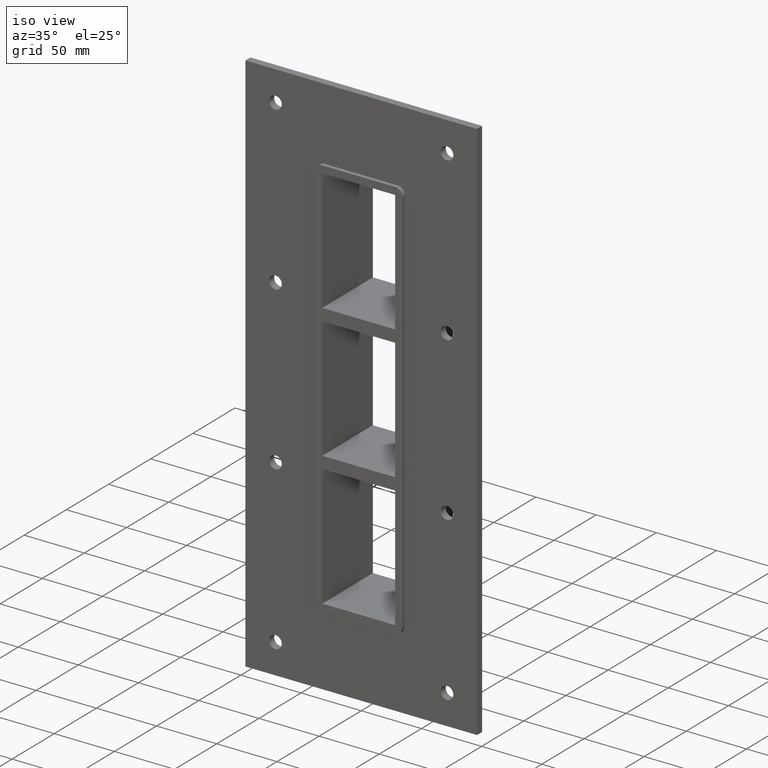
[diagram: clean part render]
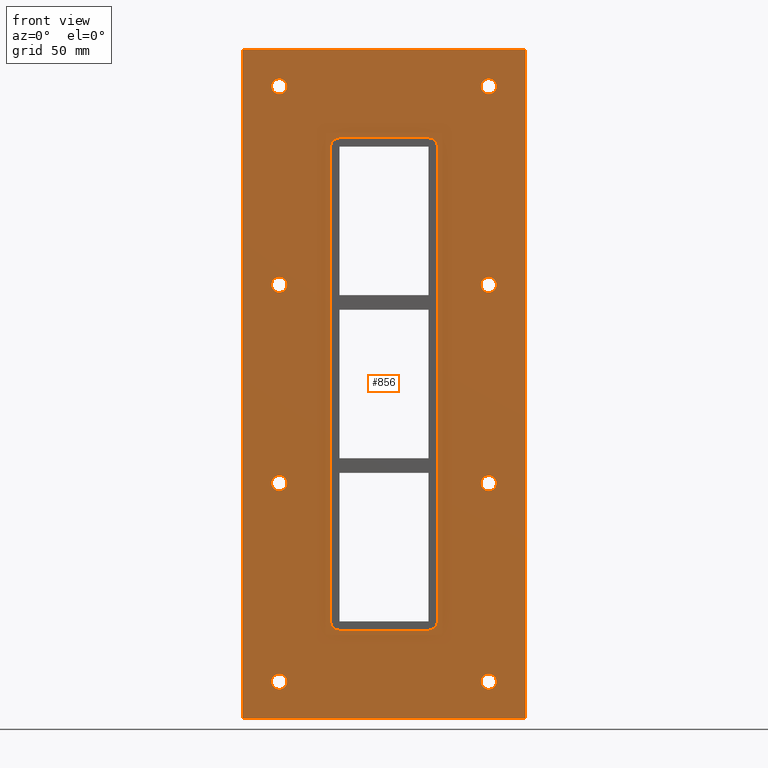
[diagram: tour spotlight — one face highlighted and labeled with its STEP entity id]
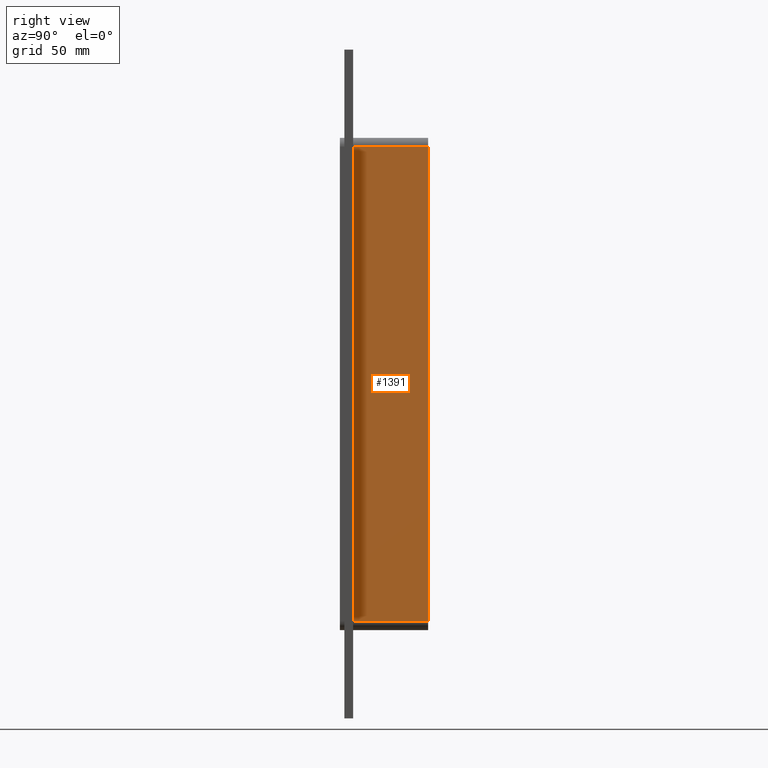
[diagram: tour spotlight — one face highlighted and labeled with its STEP entity id]
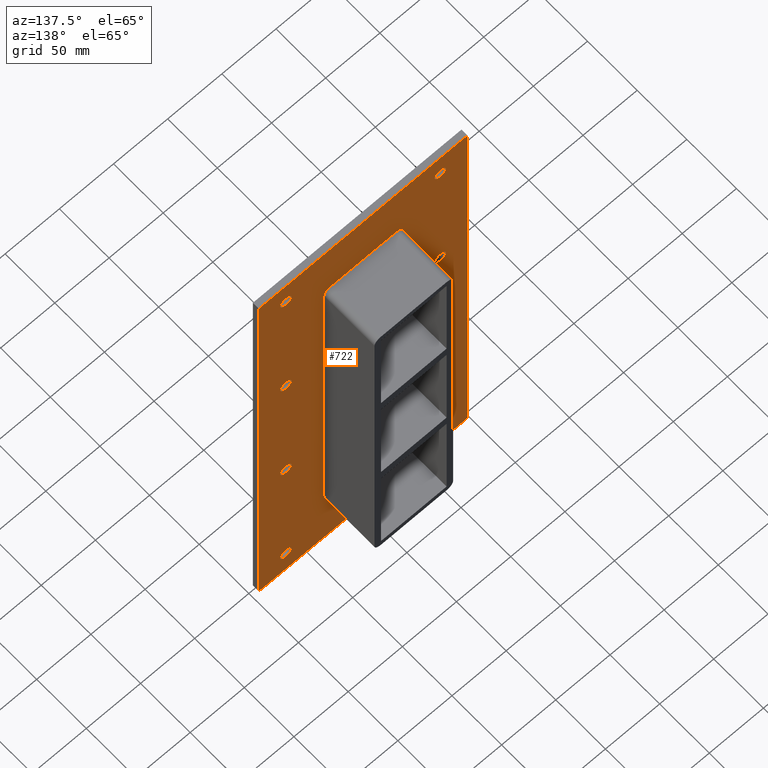
[diagram: tour spotlight — one face highlighted and labeled with its STEP entity id]
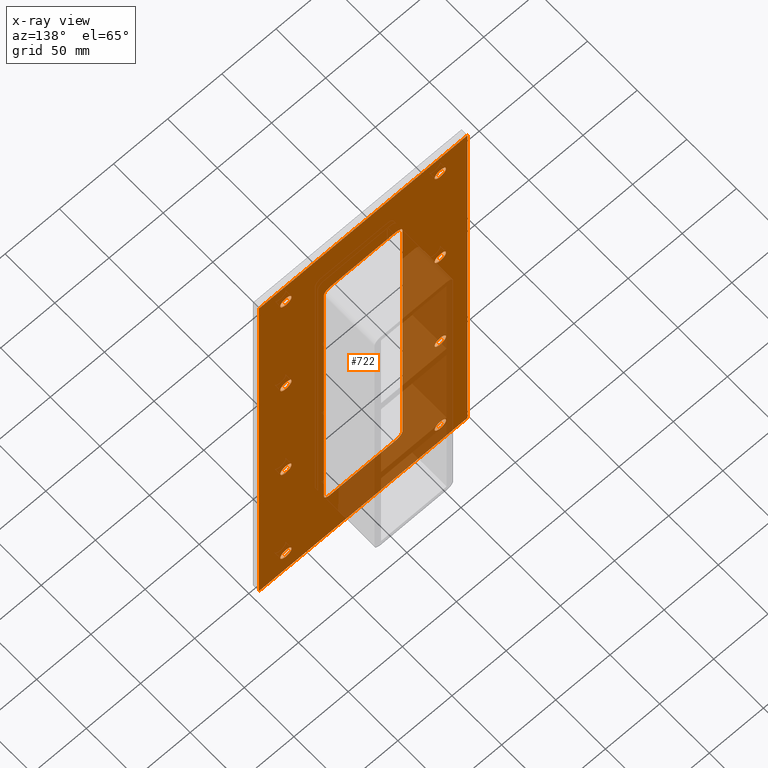
[diagram: x-ray of the same camera — body ghosted, this tour face saturated]
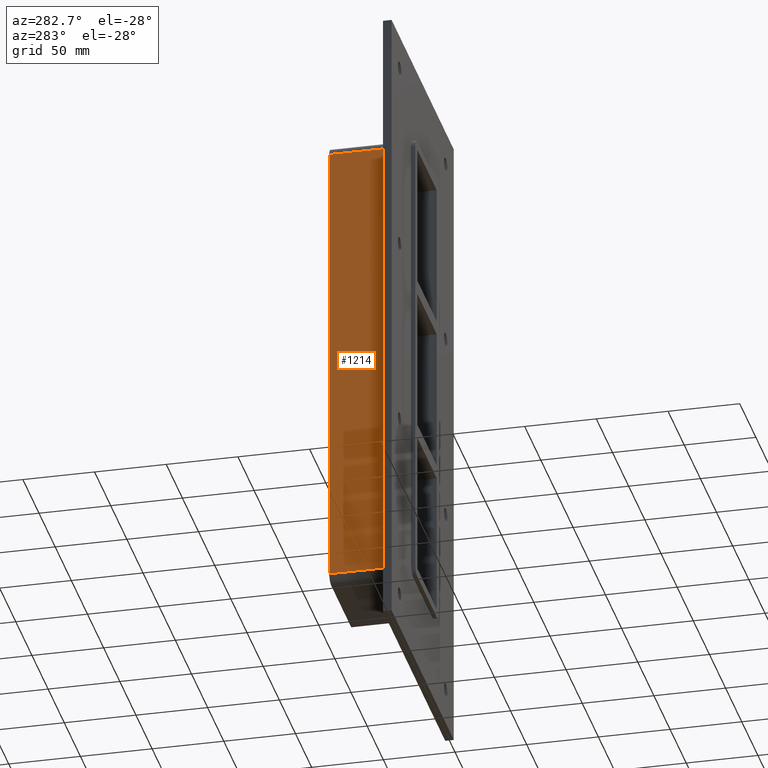
[diagram: tour spotlight — one face highlighted and labeled with its STEP entity id]
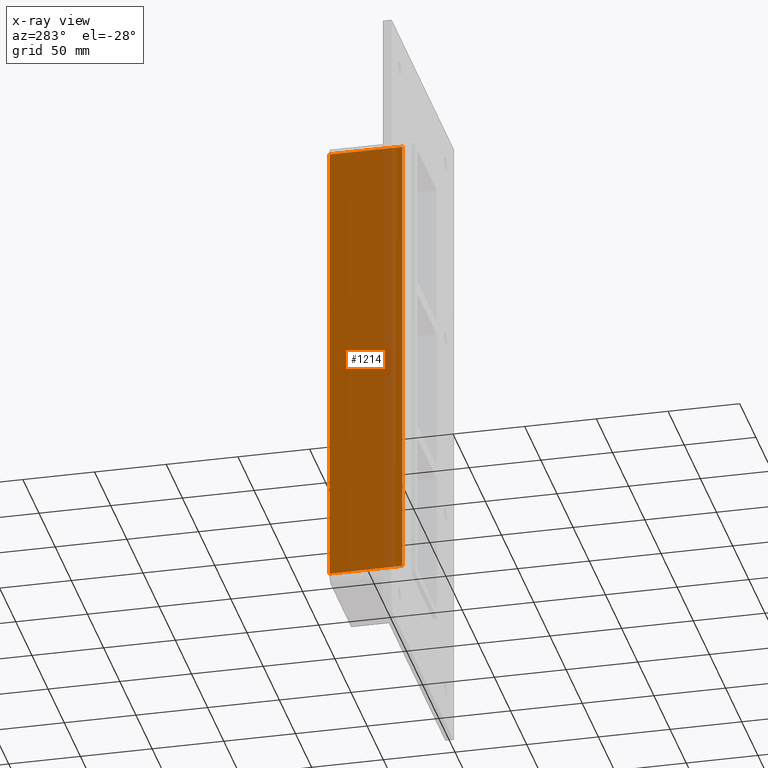
[diagram: x-ray of the same camera — body ghosted, this tour face saturated]
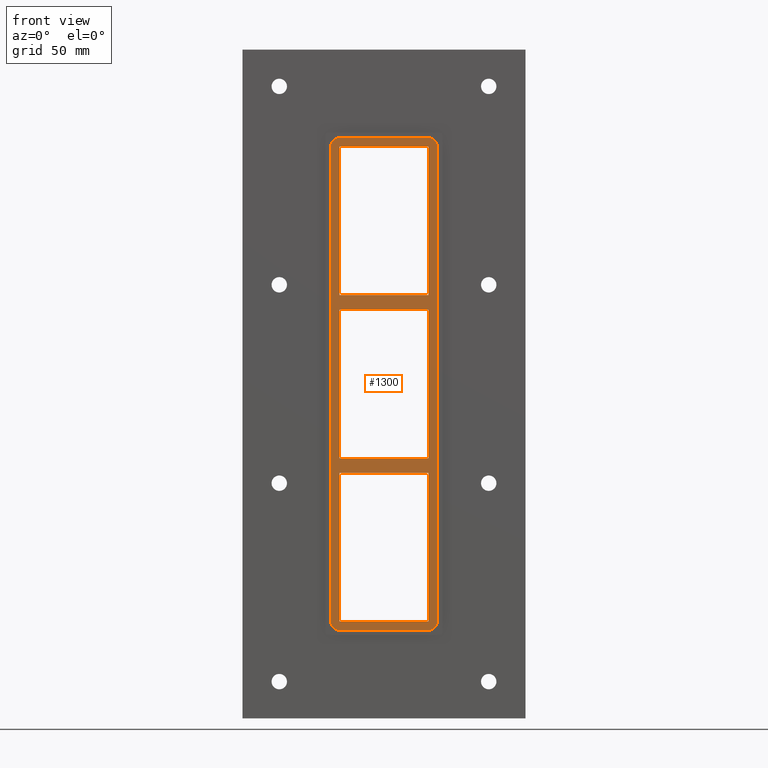
[diagram: tour spotlight — one face highlighted and labeled with its STEP entity id]
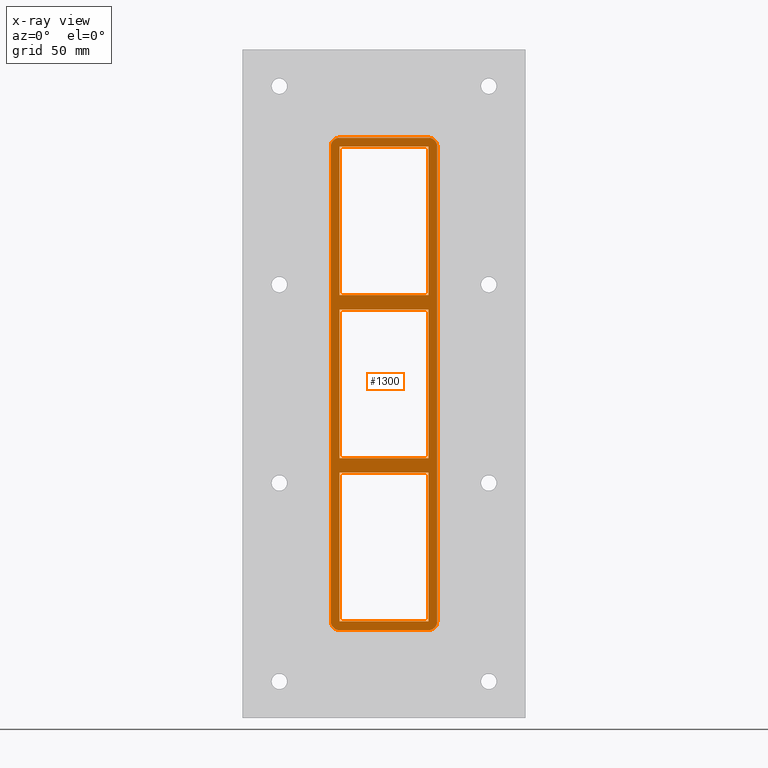
[diagram: x-ray of the same camera — body ghosted, this tour face saturated]
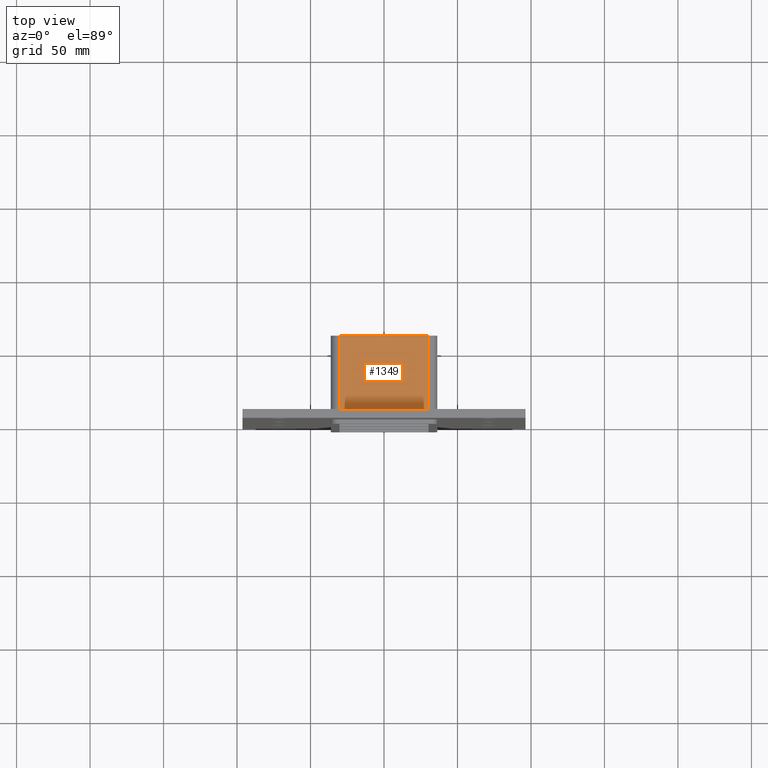
[diagram: tour spotlight — one face highlighted and labeled with its STEP entity id]
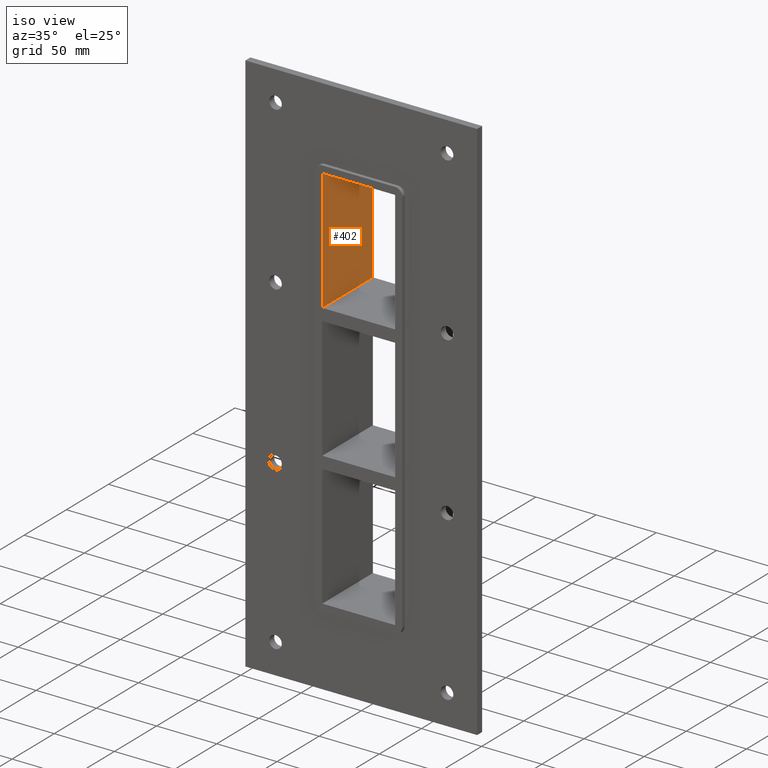
[diagram: tour spotlight — one face highlighted and labeled with its STEP entity id]
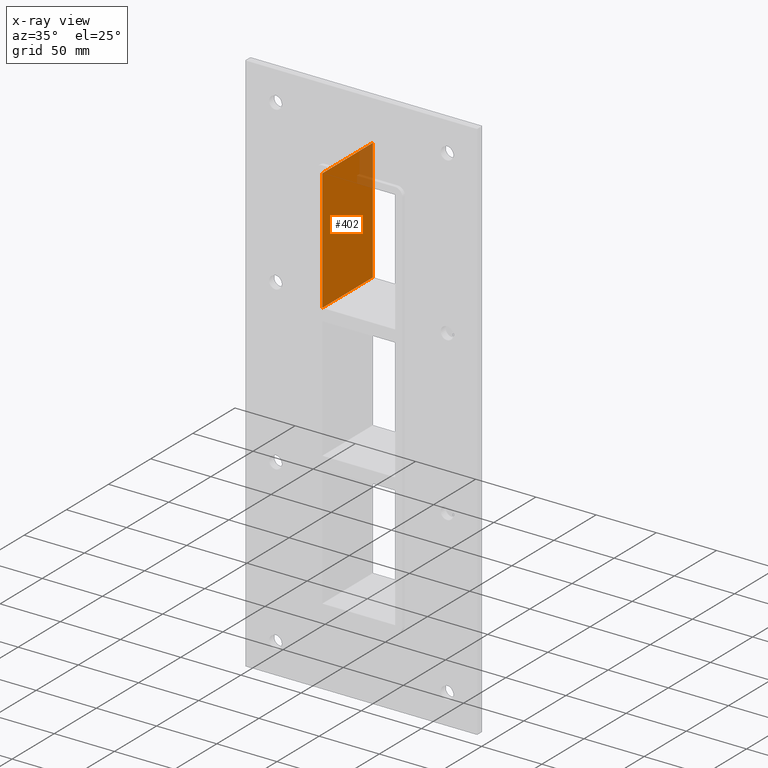
[diagram: x-ray of the same camera — body ghosted, this tour face saturated]
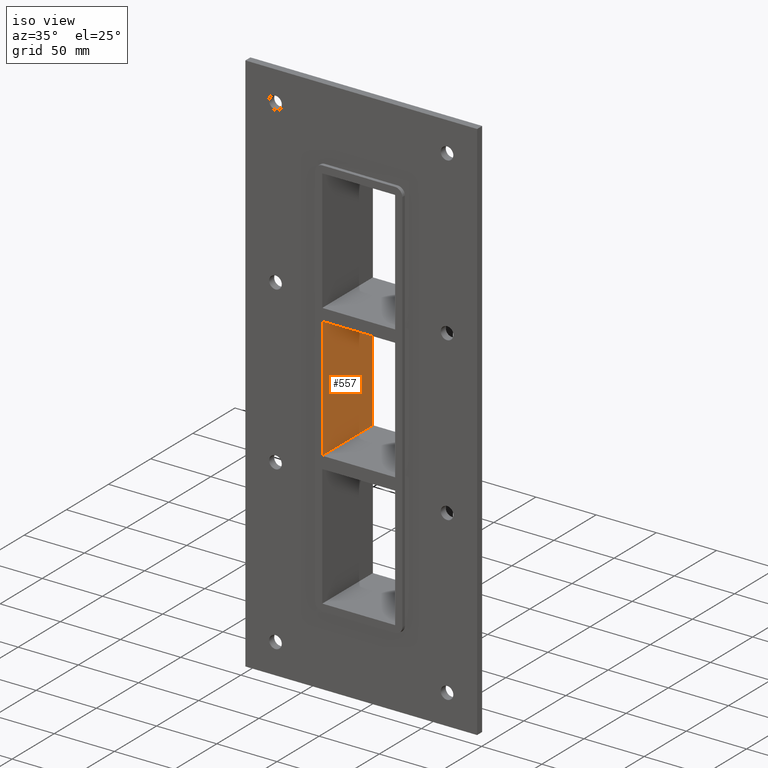
[diagram: tour spotlight — one face highlighted and labeled with its STEP entity id]
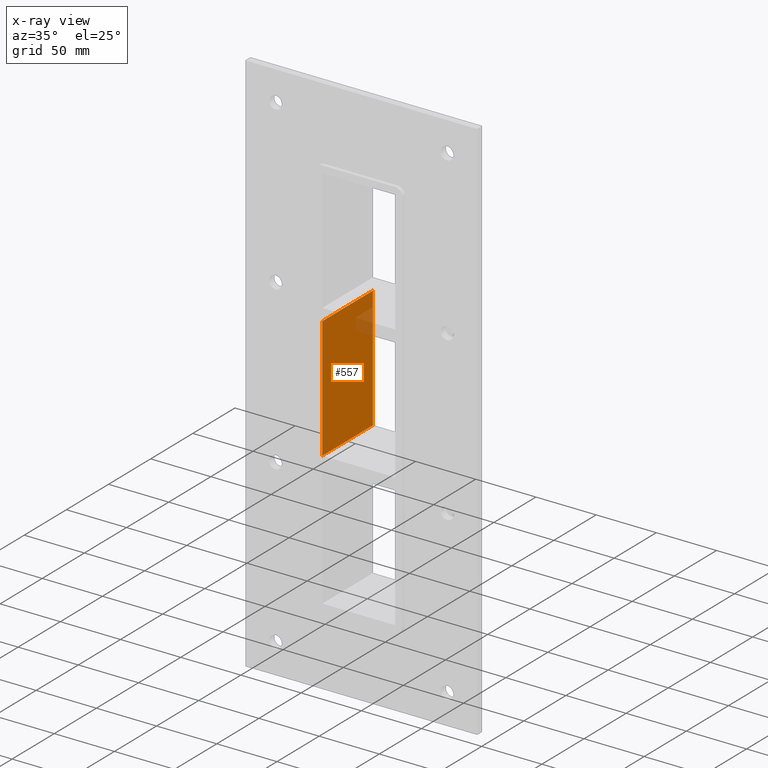
[diagram: x-ray of the same camera — body ghosted, this tour face saturated]
A machine part: a face-by-face anatomy tour. The part has 44 B-rep faces; the first image is the clean iso view, then the 8 largest visible faces are spotlighted one at a time (largest first), each with its STEP entity span.

Face 1 — front view, entity #856. In plain terms, the highlighted planar face has unit normal (0, 1, 0).
Definition (entity closure, byte-faithful):
#84=CARTESIAN_POINT('',(-66.000000000000085,0.0,-202.49999999999986));
#85=VERTEX_POINT('',#84);
#86=CARTESIAN_POINT('',(-71.250000000000085,0.0,-202.49999999999986));
#87=DIRECTION('',(0.0,1.0,0.0));
#88=DIRECTION('',(1.0,0.0,0.0));
#89=AXIS2_PLACEMENT_3D('',#86,#87,#88);
#90=CIRCLE('',#89,5.25);
#91=EDGE_CURVE('',#85,#85,#90,.T.);
#112=CARTESIAN_POINT('',(76.499999999999915,0.0,-67.499999999999886));
#113=VERTEX_POINT('',#112);
#114=CARTESIAN_POINT('',(71.249999999999915,0.0,-67.499999999999886));
#115=DIRECTION('',(0.0,1.0,0.0));
#116=DIRECTION('',(1.0,0.0,0.0));
#117=AXIS2_PLACEMENT_3D('',#114,#115,#116);
#118=CIRCLE('',#117,5.25);
#119=EDGE_CURVE('',#113,#113,#118,.T.);
#140=CARTESIAN_POINT('',(-66.000000000000085,0.0,-67.499999999999886));
#141=VERTEX_POINT('',#140);
#142=CARTESIAN_POINT('',(-71.250000000000085,0.0,-67.499999999999886));
#143=DIRECTION('',(0.0,1.0,0.0));
#144=DIRECTION('',(1.0,0.0,0.0));
#145=AXIS2_PLACEMENT_3D('',#142,#143,#144);
#146=CIRCLE('',#145,5.25);
#147=EDGE_CURVE('',#141,#141,#146,.T.);
#168=CARTESIAN_POINT('',(76.499999999999915,0.0,67.500000000000085));
#169=VERTEX_POINT('',#168);
#170=CARTESIAN_POINT('',(71.249999999999915,0.0,67.500000000000085));
#171=DIRECTION('',(0.0,1.0,0.0));
#172=DIRECTION('',(1.0,0.0,0.0));
#173=AXIS2_PLACEMENT_3D('',#170,#171,#172);
#174=CIRCLE('',#173,5.25);
#175=EDGE_CURVE('',#169,#169,#174,.T.);
#196=CARTESIAN_POINT('',(-66.000000000000085,0.0,67.500000000000085));
#197=VERTEX_POINT('',#196);
#198=CARTESIAN_POINT('',(-71.250000000000085,0.0,67.500000000000085));
#199=DIRECTION('',(0.0,1.0,0.0));
#200=DIRECTION('',(1.0,0.0,0.0));
#201=AXIS2_PLACEMENT_3D('',#198,#199,#200);
#202=CIRCLE('',#201,5.25);
#203=EDGE_CURVE('',#197,#197,#202,.T.);
#224=CARTESIAN_POINT('',(76.499999999999901,0.0,-202.49999999999994));
#225=VERTEX_POINT('',#224);
#226=CARTESIAN_POINT('',(71.249999999999886,0.0,-202.49999999999994));
#227=DIRECTION('',(0.0,1.0,0.0));
#228=DIRECTION('',(1.0,0.0,0.0));
#229=AXIS2_PLACEMENT_3D('',#226,#227,#228);
#230=CIRCLE('',#229,5.25);
#231=EDGE_CURVE('',#225,#225,#230,.T.);
#252=CARTESIAN_POINT('',(-66.000000000000085,0.0,202.50000000000006));
#253=VERTEX_POINT('',#252);
#254=CARTESIAN_POINT('',(-71.250000000000085,0.0,202.50000000000006));
#255=DIRECTION('',(0.0,1.0,0.0));
#256=DIRECTION('',(1.0,0.0,0.0));
#257=AXIS2_PLACEMENT_3D('',#254,#255,#256);
#258=CIRCLE('',#257,5.25);
#259=EDGE_CURVE('',#253,#253,#258,.T.);
#280=CARTESIAN_POINT('',(76.499999999999915,0.0,202.50000000000006));
#281=VERTEX_POINT('',#280);
#282=CARTESIAN_POINT('',(71.249999999999915,0.0,202.50000000000006));
#283=DIRECTION('',(0.0,1.0,0.0));
#284=DIRECTION('',(1.0,0.0,0.0));
#285=AXIS2_PLACEMENT_3D('',#282,#283,#284);
#286=CIRCLE('',#285,5.25);
#287=EDGE_CURVE('',#281,#281,#286,.T.);
#723=CARTESIAN_POINT('',(0.0,0.0,3.881923E-014));
#724=DIRECTION('',(0.0,1.0,0.0));
#725=DIRECTION('',(0.0,0.0,1.0));
#726=AXIS2_PLACEMENT_3D('',#723,#724,#725);
#727=PLANE('',#726);
#728=CARTESIAN_POINT('',(-96.249999999999986,0.0,227.5));
#729=VERTEX_POINT('',#728);
#730=CARTESIAN_POINT('',(96.249999999999986,0.0,227.5));
#731=VERTEX_POINT('',#730);
#732=CARTESIAN_POINT('',(-96.249999999999986,0.0,227.5));
#733=DIRECTION('',(1.0,0.0,0.0));
#734=VECTOR('',#733,192.49999999999997);
#735=LINE('',#732,#734);
#736=EDGE_CURVE('',#729,#731,#735,.T.);
#737=ORIENTED_EDGE('',*,*,#736,.F.);
#738=CARTESIAN_POINT('',(-96.249999999999986,0.0,-227.49999999999994));
#739=VERTEX_POINT('',#738);
#740=CARTESIAN_POINT('',(-96.249999999999986,0.0,-227.49999999999994));
#741=DIRECTION('',(0.0,0.0,1.0));
#742=VECTOR('',#741,454.99999999999994);
#743=LINE('',#740,#742);
#744=EDGE_CURVE('',#739,#729,#743,.T.);
#745=ORIENTED_EDGE('',*,*,#744,.F.);
#746=CARTESIAN_POINT('',(96.249999999999986,0.0,-227.49999999999994));
#747=VERTEX_POINT('',#746);
#748=CARTESIAN_POINT('',(96.249999999999986,0.0,-227.49999999999994));
#749=DIRECTION('',(-1.0,0.0,0.0));
#750=VECTOR('',#749,192.49999999999997);
#751=LINE('',#748,#750);
#752=EDGE_CURVE('',#747,#739,#751,.T.);
#753=ORIENTED_EDGE('',*,*,#752,.F.);
#754=CARTESIAN_POINT('',(96.249999999999986,0.0,227.5));
#755=DIRECTION('',(0.0,0.0,-1.0));
#756=VECTOR('',#755,454.99999999999994);
#757=LINE('',#754,#756);
#758=EDGE_CURVE('',#731,#747,#757,.T.);
#759=ORIENTED_EDGE('',*,*,#758,.F.);
#760=EDGE_LOOP('',(#737,#745,#753,#759));
#761=FACE_OUTER_BOUND('',#760,.T.);
#762=ORIENTED_EDGE('',*,*,#91,.T.);
#763=EDGE_LOOP('',(#762));
#764=FACE_BOUND('',#763,.T.);
#765=ORIENTED_EDGE('',*,*,#119,.T.);
#766=EDGE_LOOP('',(#765));
#767=FACE_BOUND('',#766,.T.);
#768=ORIENTED_EDGE('',*,*,#147,.T.);
#769=EDGE_LOOP('',(#768));
#770=FACE_BOUND('',#769,.T.);
#771=ORIENTED_EDGE('',*,*,#175,.T.);
#772=EDGE_LOOP('',(#771));
#773=FACE_BOUND('',#772,.T.);
#774=ORIENTED_EDGE('',*,*,#203,.T.);
#775=EDGE_LOOP('',(#774));
#776=FACE_BOUND('',#775,.T.);
#777=ORIENTED_EDGE('',*,*,#231,.T.);
#778=EDGE_LOOP('',(#777));
#779=FACE_BOUND('',#778,.T.);
#780=ORIENTED_EDGE('',*,*,#259,.T.);
#781=EDGE_LOOP('',(#780));
#782=FACE_BOUND('',#781,.T.);
#783=ORIENTED_EDGE('',*,*,#287,.T.);
#784=EDGE_LOOP('',(#783));
#785=FACE_BOUND('',#784,.T.);
#786=CARTESIAN_POINT('',(-30.250000000000004,0.0,167.5));
#787=VERTEX_POINT('',#786);
#788=CARTESIAN_POINT('',(-36.25,0.0,161.5));
#789=VERTEX_POINT('',#788);
#790=CARTESIAN_POINT('',(-30.250000000000004,0.0,161.5));
#791=DIRECTION('',(0.0,-1.0,0.0));
#792=DIRECTION('',(-0.707106781186546,0.0,0.707106781186549));
#793=AXIS2_PLACEMENT_3D('',#790,#791,#792);
#794=CIRCLE('',#793,6.000000000000001);
#795=EDGE_CURVE('',#787,#789,#794,.T.);
#796=ORIENTED_EDGE('',*,*,#795,.F.);
#797=CARTESIAN_POINT('',(30.250000000000004,0.0,167.5));
#798=VERTEX_POINT('',#797);
#799=CARTESIAN_POINT('',(30.25,0.0,167.5));
#800=DIRECTION('',(-1.0,0.0,0.0));
#801=VECTOR('',#800,60.5);
#802=LINE('',#799,#801);
#803=EDGE_CURVE('',#798,#787,#802,.T.);
#804=ORIENTED_EDGE('',*,*,#803,.F.);
#805=CARTESIAN_POINT('',(36.25,0.0,161.5));
#806=VERTEX_POINT('',#805);
#807=CARTESIAN_POINT('',(30.250000000000004,0.0,161.5));
#808=DIRECTION('',(0.0,-1.0,0.0));
#809=DIRECTION('',(0.707106781186546,0.0,0.707106781186549));
#810=AXIS2_PLACEMENT_3D('',#807,#808,#809);
#811=CIRCLE('',#810,6.000000000000001);
#812=EDGE_CURVE('',#806,#798,#811,.T.);
#813=ORIENTED_EDGE('',*,*,#812,.F.);
#814=CARTESIAN_POINT('',(36.25,0.0,-161.5));
#815=VERTEX_POINT('',#814);
#816=CARTESIAN_POINT('',(36.25,0.0,-161.5));
#817=DIRECTION('',(0.0,0.0,1.0));
#818=VECTOR('',#817,323.0);
#819=LINE('',#816,#818);
#820=EDGE_CURVE('',#815,#806,#819,.T.);
#821=ORIENTED_EDGE('',*,*,#820,.F.);
#822=CARTESIAN_POINT('',(30.250000000000004,0.0,-167.5));
#823=VERTEX_POINT('',#822);
#824=CARTESIAN_POINT('',(30.250000000000004,0.0,-161.5));
#825=DIRECTION('',(0.0,-1.0,0.0));
#826=DIRECTION('',(0.707106781186546,0.0,-0.707106781186549));
#827=AXIS2_PLACEMENT_3D('',#824,#825,#826);
#828=CIRCLE('',#827,6.000000000000001);
#829=EDGE_CURVE('',#823,#815,#828,.T.);
#830=ORIENTED_EDGE('',*,*,#829,.F.);
#831=CARTESIAN_POINT('',(-30.250000000000004,0.0,-167.5));
#832=VERTEX_POINT('',#831);
#833=CARTESIAN_POINT('',(-30.25,0.0,-167.5));
#834=DIRECTION('',(1.0,0.0,0.0));
#835=VECTOR('',#834,60.5);
#836=LINE('',#833,#835);
#837=EDGE_CURVE('',#832,#823,#836,.T.);
#838=ORIENTED_EDGE('',*,*,#837,.F.);
#839=CARTESIAN_POINT('',(-36.25,0.0,-161.5));
#840=VERTEX_POINT('',#839);
#841=CARTESIAN_POINT('',(-30.250000000000004,0.0,-161.5));
#842=DIRECTION('',(0.0,-1.0,0.0));
#843=DIRECTION('',(-0.707106781186546,0.0,-0.707106781186549));
#844=AXIS2_PLACEMENT_3D('',#841,#842,#843);
#845=CIRCLE('',#844,6.000000000000001);
#846=EDGE_CURVE('',#840,#832,#845,.T.);
#847=ORIENTED_EDGE('',*,*,#846,.F.);
#848=CARTESIAN_POINT('',(-36.25,0.0,161.5));
#849=DIRECTION('',(0.0,0.0,-1.0));
#850=VECTOR('',#849,323.0);
#851=LINE('',#848,#850);
#852=EDGE_CURVE('',#789,#840,#851,.T.);
#853=ORIENTED_EDGE('',*,*,#852,.F.);
#854=EDGE_LOOP('',(#796,#804,#813,#821,#830,#838,#847,#853));
#855=FACE_BOUND('',#854,.T.);
#856=ADVANCED_FACE('',(#761,#764,#767,#770,#773,#776,#779,#782,#785,#855),#727,.F.);

Face 2 — right view, entity #1391. In plain terms, the highlighted planar face has unit normal (1, 0, 0).
Definition (entity closure, byte-faithful):
#688=CARTESIAN_POINT('',(36.25,6.000000000000001,-161.5));
#689=VERTEX_POINT('',#688);
#697=CARTESIAN_POINT('',(36.25,6.000000000000001,161.5));
#698=VERTEX_POINT('',#697);
#699=CARTESIAN_POINT('',(36.25,6.000000000000001,161.5));
#700=DIRECTION('',(0.0,0.0,-1.0));
#701=VECTOR('',#700,323.0);
#702=LINE('',#699,#701);
#703=EDGE_CURVE('',#698,#689,#702,.T.);
#1002=CARTESIAN_POINT('',(36.25,57.0,-161.5));
#1003=VERTEX_POINT('',#1002);
#1011=CARTESIAN_POINT('',(36.25,57.0,-161.5));
#1012=DIRECTION('',(0.0,-1.0,0.0));
#1013=VECTOR('',#1012,51.0);
#1014=LINE('',#1011,#1013);
#1015=EDGE_CURVE('',#1003,#689,#1014,.T.);
#1356=CARTESIAN_POINT('',(36.25,57.0,161.5));
#1357=VERTEX_POINT('',#1356);
#1358=CARTESIAN_POINT('',(36.25,6.000000000000001,161.5));
#1359=DIRECTION('',(0.0,1.0,0.0));
#1360=VECTOR('',#1359,51.0);
#1361=LINE('',#1358,#1360);
#1362=EDGE_CURVE('',#698,#1357,#1361,.T.);
#1375=CARTESIAN_POINT('',(36.25,0.0,167.5));
#1376=DIRECTION('',(1.0,0.0,0.0));
#1377=DIRECTION('',(0.0,0.0,-1.0));
#1378=AXIS2_PLACEMENT_3D('',#1375,#1376,#1377);
#1379=PLANE('',#1378);
#1380=ORIENTED_EDGE('',*,*,#703,.T.);
#1381=ORIENTED_EDGE('',*,*,#1015,.F.);
#1382=CARTESIAN_POINT('',(36.25,57.0,161.5));
#1383=DIRECTION('',(0.0,0.0,-1.0));
#1384=VECTOR('',#1383,323.0);
#1385=LINE('',#1382,#1384);
#1386=EDGE_CURVE('',#1357,#1003,#1385,.T.);
#1387=ORIENTED_EDGE('',*,*,#1386,.F.);
#1388=ORIENTED_EDGE('',*,*,#1362,.F.);
#1389=EDGE_LOOP('',(#1380,#1381,#1387,#1388));
#1390=FACE_OUTER_BOUND('',#1389,.T.);
#1391=ADVANCED_FACE('',(#1390),#1379,.T.);

Face 3 — auxiliary view, entity #722. An x-ray twin of the same camera follows (body ghosted, this face saturated) — the face is partly hidden behind the body. In plain terms, the highlighted planar face has unit normal (0, 1, 0).
Definition (entity closure, byte-faithful):
#73=CARTESIAN_POINT('',(-76.500000000000085,6.000000000000014,-202.49999999999986));
#74=VERTEX_POINT('',#73);
#75=CARTESIAN_POINT('',(-71.250000000000085,6.000000000000014,-202.49999999999986));
#76=DIRECTION('',(0.0,-1.0,0.0));
#77=DIRECTION('',(1.0,0.0,0.0));
#78=AXIS2_PLACEMENT_3D('',#75,#76,#77);
#79=CIRCLE('',#78,5.25);
#80=EDGE_CURVE('',#74,#74,#79,.T.);
#101=CARTESIAN_POINT('',(65.999999999999915,6.000000000000014,-67.499999999999886));
#102=VERTEX_POINT('',#101);
#103=CARTESIAN_POINT('',(71.249999999999915,6.000000000000014,-67.499999999999886));
#104=DIRECTION('',(0.0,-1.0,0.0));
#105=DIRECTION('',(1.0,0.0,0.0));
#106=AXIS2_PLACEMENT_3D('',#103,#104,#105);
#107=CIRCLE('',#106,5.25);
#108=EDGE_CURVE('',#102,#102,#107,.T.);
#129=CARTESIAN_POINT('',(-76.500000000000085,6.000000000000014,-67.499999999999886));
#130=VERTEX_POINT('',#129);
#131=CARTESIAN_POINT('',(-71.250000000000085,6.000000000000014,-67.499999999999886));
#132=DIRECTION('',(0.0,-1.0,0.0));
#133=DIRECTION('',(1.0,0.0,0.0));
#134=AXIS2_PLACEMENT_3D('',#131,#132,#133);
#135=CIRCLE('',#134,5.25);
#136=EDGE_CURVE('',#130,#130,#135,.T.);
#157=CARTESIAN_POINT('',(65.999999999999915,6.000000000000014,67.500000000000085));
#158=VERTEX_POINT('',#157);
#159=CARTESIAN_POINT('',(71.249999999999915,6.000000000000014,67.500000000000085));
#160=DIRECTION('',(0.0,-1.0,0.0));
#161=DIRECTION('',(1.0,0.0,0.0));
#162=AXIS2_PLACEMENT_3D('',#159,#160,#161);
#163=CIRCLE('',#162,5.25);
#164=EDGE_CURVE('',#158,#158,#163,.T.);
#185=CARTESIAN_POINT('',(-76.500000000000085,6.000000000000014,67.500000000000085));
#186=VERTEX_POINT('',#185);
#187=CARTESIAN_POINT('',(-71.250000000000085,6.000000000000014,67.500000000000085));
#188=DIRECTION('',(0.0,-1.0,0.0));
#189=DIRECTION('',(1.0,0.0,0.0));
#190=AXIS2_PLACEMENT_3D('',#187,#188,#189);
#191=CIRCLE('',#190,5.25);
#192=EDGE_CURVE('',#186,#186,#191,.T.);
#213=CARTESIAN_POINT('',(65.999999999999886,6.000000000000014,-202.49999999999994));
#214=VERTEX_POINT('',#213);
#215=CARTESIAN_POINT('',(71.249999999999886,6.000000000000014,-202.49999999999994));
#216=DIRECTION('',(0.0,-1.0,0.0));
#217=DIRECTION('',(1.0,0.0,0.0));
#218=AXIS2_PLACEMENT_3D('',#215,#216,#217);
#219=CIRCLE('',#218,5.25);
#220=EDGE_CURVE('',#214,#214,#219,.T.);
#241=CARTESIAN_POINT('',(-76.500000000000085,6.000000000000014,202.50000000000006));
#242=VERTEX_POINT('',#241);
#243=CARTESIAN_POINT('',(-71.250000000000085,6.000000000000014,202.50000000000006));
#244=DIRECTION('',(0.0,-1.0,0.0));
#245=DIRECTION('',(1.0,0.0,0.0));
#246=AXIS2_PLACEMENT_3D('',#243,#244,#245);
#247=CIRCLE('',#246,5.25);
#248=EDGE_CURVE('',#242,#242,#247,.T.);
#269=CARTESIAN_POINT('',(65.999999999999915,6.000000000000014,202.50000000000006));
#270=VERTEX_POINT('',#269);
#271=CARTESIAN_POINT('',(71.249999999999915,6.000000000000014,202.50000000000006));
#272=DIRECTION('',(0.0,-1.0,0.0));
#273=DIRECTION('',(1.0,0.0,0.0));
#274=AXIS2_PLACEMENT_3D('',#271,#272,#273);
#275=CIRCLE('',#274,5.25);
#276=EDGE_CURVE('',#270,#270,#275,.T.);
#589=CARTESIAN_POINT('',(0.0,6.000000000000001,3.881923E-014));
#590=DIRECTION('',(0.0,1.0,0.0));
#591=DIRECTION('',(0.0,0.0,1.0));
#592=AXIS2_PLACEMENT_3D('',#589,#590,#591);
#593=PLANE('',#592);
#594=CARTESIAN_POINT('',(-96.249999999999986,6.000000000000001,227.5));
#595=VERTEX_POINT('',#594);
#596=CARTESIAN_POINT('',(96.249999999999986,6.000000000000001,227.5));
#597=VERTEX_POINT('',#596);
#598=CARTESIAN_POINT('',(-96.249999999999986,6.000000000000001,227.5));
#599=DIRECTION('',(1.0,0.0,0.0));
#600=VECTOR('',#599,192.49999999999997);
#601=LINE('',#598,#600);
#602=EDGE_CURVE('',#595,#597,#601,.T.);
#603=ORIENTED_EDGE('',*,*,#602,.T.);
#604=CARTESIAN_POINT('',(96.249999999999986,6.000000000000001,-227.49999999999994));
#605=VERTEX_POINT('',#604);
#606=CARTESIAN_POINT('',(96.249999999999986,6.000000000000001,227.5));
#607=DIRECTION('',(0.0,0.0,-1.0));
#608=VECTOR('',#607,454.99999999999994);
#609=LINE('',#606,#608);
#610=EDGE_CURVE('',#597,#605,#609,.T.);
#611=ORIENTED_EDGE('',*,*,#610,.T.);
#612=CARTESIAN_POINT('',(-96.249999999999986,6.000000000000001,-227.49999999999994));
#613=VERTEX_POINT('',#612);
#614=CARTESIAN_POINT('',(96.249999999999986,6.000000000000001,-227.49999999999994));
#615=DIRECTION('',(-1.0,0.0,0.0));
#616=VECTOR('',#615,192.49999999999997);
#617=LINE('',#614,#616);
#618=EDGE_CURVE('',#605,#613,#617,.T.);
#619=ORIENTED_EDGE('',*,*,#618,.T.);
#620=CARTESIAN_POINT('',(-96.249999999999986,6.000000000000001,-227.49999999999994));
#621=DIRECTION('',(0.0,0.0,1.0));
#622=VECTOR('',#621,454.99999999999994);
#623=LINE('',#620,#622);
#624=EDGE_CURVE('',#613,#595,#623,.T.);
#625=ORIENTED_EDGE('',*,*,#624,.T.);
#626=EDGE_LOOP('',(#603,#611,#619,#625));
#627=FACE_OUTER_BOUND('',#626,.T.);
#628=ORIENTED_EDGE('',*,*,#80,.T.);
#629=EDGE_LOOP('',(#628));
#630=FACE_BOUND('',#629,.T.);
#631=ORIENTED_EDGE('',*,*,#108,.T.);
#632=EDGE_LOOP('',(#631));
#633=FACE_BOUND('',#632,.T.);
#634=ORIENTED_EDGE('',*,*,#136,.T.);
#635=EDGE_LOOP('',(#634));
#636=FACE_BOUND('',#635,.T.);
#637=ORIENTED_EDGE('',*,*,#164,.T.);
#638=EDGE_LOOP('',(#637));
#639=FACE_BOUND('',#638,.T.);
#640=ORIENTED_EDGE('',*,*,#192,.T.);
#641=EDGE_LOOP('',(#640));
#642=FACE_BOUND('',#641,.T.);
#643=ORIENTED_EDGE('',*,*,#220,.T.);
#644=EDGE_LOOP('',(#643));
#645=FACE_BOUND('',#644,.T.);
#646=ORIENTED_EDGE('',*,*,#248,.T.);
#647=EDGE_LOOP('',(#646));
#648=FACE_BOUND('',#647,.T.);
#649=ORIENTED_EDGE('',*,*,#276,.T.);
#650=EDGE_LOOP('',(#649));
#651=FACE_BOUND('',#650,.T.);
#652=CARTESIAN_POINT('',(-36.25,6.000000000000001,161.5));
#653=VERTEX_POINT('',#652);
#654=CARTESIAN_POINT('',(-30.250000000000004,6.000000000000001,167.5));
#655=VERTEX_POINT('',#654);
#656=CARTESIAN_POINT('',(-30.250000000000004,6.000000000000001,161.5));
#657=DIRECTION('',(0.0,1.0,0.0));
#658=DIRECTION('',(-0.707106781186546,0.0,0.707106781186549));
#659=AXIS2_PLACEMENT_3D('',#656,#657,#658);
#660=CIRCLE('',#659,6.000000000000001);
#661=EDGE_CURVE('',#653,#655,#660,.T.);
#662=ORIENTED_EDGE('',*,*,#661,.F.);
#663=CARTESIAN_POINT('',(-36.25,6.000000000000001,-161.5));
#664=VERTEX_POINT('',#663);
#665=CARTESIAN_POINT('',(-36.25,6.000000000000001,-161.5));
#666=DIRECTION('',(0.0,0.0,1.0));
#667=VECTOR('',#666,323.0);
#668=LINE('',#665,#667);
#669=EDGE_CURVE('',#664,#653,#668,.T.);
#670=ORIENTED_EDGE('',*,*,#669,.F.);
#671=CARTESIAN_POINT('',(-30.250000000000004,6.000000000000001,-167.5));
#672=VERTEX_POINT('',#671);
#673=CARTESIAN_POINT('',(-30.250000000000004,6.000000000000001,-161.5));
#674=DIRECTION('',(0.0,1.0,0.0));
#675=DIRECTION('',(-0.707106781186546,0.0,-0.707106781186549));
#676=AXIS2_PLACEMENT_3D('',#673,#674,#675);
#677=CIRCLE('',#676,6.000000000000001);
#678=EDGE_CURVE('',#672,#664,#677,.T.);
#679=ORIENTED_EDGE('',*,*,#678,.F.);
#680=CARTESIAN_POINT('',(30.250000000000004,6.000000000000001,-167.5));
#681=VERTEX_POINT('',#680);
#682=CARTESIAN_POINT('',(30.250000000000004,6.000000000000001,-167.5));
#683=DIRECTION('',(-1.0,0.0,0.0));
#684=VECTOR('',#683,60.5);
#685=LINE('',#682,#684);
#686=EDGE_CURVE('',#681,#672,#685,.T.);
#687=ORIENTED_EDGE('',*,*,#686,.F.);
#688=CARTESIAN_POINT('',(36.25,6.000000000000001,-161.5));
#689=VERTEX_POINT('',#688);
#690=CARTESIAN_POINT('',(30.250000000000004,6.000000000000001,-161.5));
#691=DIRECTION('',(0.0,1.0,0.0));
#692=DIRECTION('',(0.707106781186546,0.0,-0.707106781186549));
#693=AXIS2_PLACEMENT_3D('',#690,#691,#692);
#694=CIRCLE('',#693,6.000000000000001);
#695=EDGE_CURVE('',#689,#681,#694,.T.);
#696=ORIENTED_EDGE('',*,*,#695,.F.);
#697=CARTESIAN_POINT('',(36.25,6.000000000000001,161.5));
#698=VERTEX_POINT('',#697);
#699=CARTESIAN_POINT('',(36.25,6.000000000000001,161.5));
#700=DIRECTION('',(0.0,0.0,-1.0));
#701=VECTOR('',#700,323.0);
#702=LINE('',#699,#701);
#703=EDGE_CURVE('',#698,#689,#702,.T.);
#704=ORIENTED_EDGE('',*,*,#703,.F.);
#705=CARTESIAN_POINT('',(30.250000000000004,6.000000000000001,167.5));
#706=VERTEX_POINT('',#705);
#707=CARTESIAN_POINT('',(30.250000000000004,6.000000000000001,161.5));
#708=DIRECTION('',(0.0,1.0,0.0));
#709=DIRECTION('',(0.707106781186546,0.0,0.707106781186549));
#710=AXIS2_PLACEMENT_3D('',#707,#708,#709);
#711=CIRCLE('',#710,6.000000000000001);
#712=EDGE_CURVE('',#706,#698,#711,.T.);
#713=ORIENTED_EDGE('',*,*,#712,.F.);
#714=CARTESIAN_POINT('',(-30.250000000000004,6.000000000000001,167.5));
#715=DIRECTION('',(1.0,0.0,0.0));
#716=VECTOR('',#715,60.5);
#717=LINE('',#714,#716);
#718=EDGE_CURVE('',#655,#706,#717,.T.);
#719=ORIENTED_EDGE('',*,*,#718,.F.);
#720=EDGE_LOOP('',(#662,#670,#679,#687,#696,#704,#713,#719));
#721=FACE_BOUND('',#720,.T.);
#722=ADVANCED_FACE('',(#627,#630,#633,#636,#639,#642,#645,#648,#651,#721),#593,.T.);

Face 4 — auxiliary view, entity #1214. An x-ray twin of the same camera follows (body ghosted, this face saturated) — the face is partly hidden behind the body. In plain terms, the highlighted planar face has unit normal (-1, 0, 0).
Definition (entity closure, byte-faithful):
#652=CARTESIAN_POINT('',(-36.25,6.000000000000001,161.5));
#653=VERTEX_POINT('',#652);
#663=CARTESIAN_POINT('',(-36.25,6.000000000000001,-161.5));
#664=VERTEX_POINT('',#663);
#665=CARTESIAN_POINT('',(-36.25,6.000000000000001,-161.5));
#666=DIRECTION('',(0.0,0.0,1.0));
#667=VECTOR('',#666,323.0);
#668=LINE('',#665,#667);
#669=EDGE_CURVE('',#664,#653,#668,.T.);
#1123=CARTESIAN_POINT('',(-36.25,57.0,-161.5));
#1124=VERTEX_POINT('',#1123);
#1125=CARTESIAN_POINT('',(-36.25,6.000000000000001,-161.5));
#1126=DIRECTION('',(0.0,1.0,0.0));
#1127=VECTOR('',#1126,51.0);
#1128=LINE('',#1125,#1127);
#1129=EDGE_CURVE('',#664,#1124,#1128,.T.);
#1191=CARTESIAN_POINT('',(-36.25,0.0,-167.5));
#1192=DIRECTION('',(-1.0,0.0,0.0));
#1193=DIRECTION('',(0.0,0.0,1.0));
#1194=AXIS2_PLACEMENT_3D('',#1191,#1192,#1193);
#1195=PLANE('',#1194);
#1196=ORIENTED_EDGE('',*,*,#669,.T.);
#1197=CARTESIAN_POINT('',(-36.25,57.0,161.5));
#1198=VERTEX_POINT('',#1197);
#1199=CARTESIAN_POINT('',(-36.25,57.0,161.5));
#1200=DIRECTION('',(0.0,-1.0,0.0));
#1201=VECTOR('',#1200,51.0);
#1202=LINE('',#1199,#1201);
#1203=EDGE_CURVE('',#1198,#653,#1202,.T.);
#1204=ORIENTED_EDGE('',*,*,#1203,.F.);
#1205=CARTESIAN_POINT('',(-36.25,57.0,-161.5));
#1206=DIRECTION('',(0.0,0.0,1.0));
#1207=VECTOR('',#1206,323.0);
#1208=LINE('',#1205,#1207);
#1209=EDGE_CURVE('',#1124,#1198,#1208,.T.);
#1210=ORIENTED_EDGE('',*,*,#1209,.F.);
#1211=ORIENTED_EDGE('',*,*,#1129,.F.);
#1212=EDGE_LOOP('',(#1196,#1204,#1210,#1211));
#1213=FACE_OUTER_BOUND('',#1212,.T.);
#1214=ADVANCED_FACE('',(#1213),#1195,.T.);

Face 5 — front view, entity #1300. An x-ray twin of the same camera follows (body ghosted, this face saturated) — the face is partly hidden behind the body. In plain terms, the highlighted planar face has unit normal (0, 1, 0).
Definition (entity closure, byte-faithful):
#297=CARTESIAN_POINT('',(30.249999999996362,-3.0,50.499999999989207));
#298=VERTEX_POINT('',#297);
#299=CARTESIAN_POINT('',(-30.249999999997055,-3.0,50.4999999999891));
#300=VERTEX_POINT('',#299);
#301=CARTESIAN_POINT('',(30.249999999996362,-3.0,50.499999999989207));
#302=DIRECTION('',(-1.0,0.0,0.0));
#303=VECTOR('',#302,60.49999999999342);
#304=LINE('',#301,#303);
#305=EDGE_CURVE('',#298,#300,#304,.T.);
#337=CARTESIAN_POINT('',(-30.249999999997055,-3.0,60.500000000000469));
#338=VERTEX_POINT('',#337);
#339=CARTESIAN_POINT('',(30.249999999999012,-3.0,60.500000000000469));
#340=VERTEX_POINT('',#339);
#341=CARTESIAN_POINT('',(-30.249999999997055,-3.0,60.500000000000469));
#342=DIRECTION('',(1.0,0.0,0.0));
#343=VECTOR('',#342,60.499999999996064);
#344=LINE('',#341,#343);
#345=EDGE_CURVE('',#338,#340,#344,.T.);
#386=CARTESIAN_POINT('',(-30.249999999999986,-3.0,161.5));
#387=VERTEX_POINT('',#386);
#394=CARTESIAN_POINT('',(-30.249999999999986,-3.0,60.500000000000455));
#395=DIRECTION('',(0.0,0.0,1.0));
#396=VECTOR('',#395,100.99999999999952);
#397=LINE('',#394,#396);
#398=EDGE_CURVE('',#338,#387,#397,.T.);
#417=CARTESIAN_POINT('',(30.249999999999012,-3.0,-50.499999999999545));
#418=VERTEX_POINT('',#417);
#425=CARTESIAN_POINT('',(30.249999999999986,-3.0,50.499999999989214));
#426=DIRECTION('',(0.0,0.0,-1.0));
#427=VECTOR('',#426,100.99999999998876);
#428=LINE('',#425,#427);
#429=EDGE_CURVE('',#298,#418,#428,.T.);
#440=CARTESIAN_POINT('',(30.249999999999986,-3.0,161.5));
#441=VERTEX_POINT('',#440);
#442=CARTESIAN_POINT('',(30.249999999999986,-3.0,161.5));
#443=DIRECTION('',(0.0,0.0,-1.0));
#444=VECTOR('',#443,100.99999999999952);
#445=LINE('',#442,#444);
#446=EDGE_CURVE('',#441,#340,#445,.T.);
#470=CARTESIAN_POINT('',(30.249999999996362,-3.0,-60.500000000010807));
#471=VERTEX_POINT('',#470);
#472=CARTESIAN_POINT('',(-30.249999999997055,-3.0,-60.500000000010914));
#473=VERTEX_POINT('',#472);
#474=CARTESIAN_POINT('',(30.249999999996362,-3.0,-60.500000000010807));
#475=DIRECTION('',(-1.0,0.0,0.0));
#476=VECTOR('',#475,60.49999999999342);
#477=LINE('',#474,#476);
#478=EDGE_CURVE('',#471,#473,#477,.T.);
#510=CARTESIAN_POINT('',(-30.249999999997055,-3.0,-50.499999999999545));
#511=VERTEX_POINT('',#510);
#512=CARTESIAN_POINT('',(-30.249999999997055,-3.0,-50.499999999999545));
#513=DIRECTION('',(1.0,0.0,0.0));
#514=VECTOR('',#513,60.499999999996064);
#515=LINE('',#512,#514);
#516=EDGE_CURVE('',#511,#418,#515,.T.);
#542=CARTESIAN_POINT('',(-30.249999999999986,-3.0,-50.499999999999552));
#543=DIRECTION('',(0.0,0.0,1.0));
#544=VECTOR('',#543,100.99999999998863);
#545=LINE('',#542,#544);
#546=EDGE_CURVE('',#511,#300,#545,.T.);
#572=CARTESIAN_POINT('',(30.249999999999986,-3.0,-161.5));
#573=VERTEX_POINT('',#572);
#580=CARTESIAN_POINT('',(30.249999999999986,-3.0,-60.5000000000108));
#581=DIRECTION('',(0.0,0.0,-1.0));
#582=VECTOR('',#581,100.99999999998917);
#583=LINE('',#580,#582);
#584=EDGE_CURVE('',#471,#573,#583,.T.);
#931=CARTESIAN_POINT('',(-30.249999999999986,-3.0,-161.5));
#932=VERTEX_POINT('',#931);
#933=CARTESIAN_POINT('',(-30.249999999999986,-3.0,-161.5));
#934=DIRECTION('',(0.0,0.0,1.0));
#935=VECTOR('',#934,100.99999999998909);
#936=LINE('',#933,#935);
#937=EDGE_CURVE('',#932,#473,#936,.T.);
#962=CARTESIAN_POINT('',(36.25,-3.0,-161.5));
#963=VERTEX_POINT('',#962);
#970=CARTESIAN_POINT('',(30.250000000000004,-3.0,-167.5));
#971=VERTEX_POINT('',#970);
#972=CARTESIAN_POINT('',(30.250000000000004,-3.0,-161.5));
#973=DIRECTION('',(0.0,1.0,0.0));
#974=DIRECTION('',(0.707106781186546,0.0,-0.707106781186549));
#975=AXIS2_PLACEMENT_3D('',#972,#973,#974);
#976=CIRCLE('',#975,6.000000000000001);
#977=EDGE_CURVE('',#963,#971,#976,.T.);
#1027=CARTESIAN_POINT('',(-30.250000000000004,-3.0,-167.5));
#1028=VERTEX_POINT('',#1027);
#1029=CARTESIAN_POINT('',(-30.25,-3.0,-167.5));
#1030=DIRECTION('',(1.0,0.0,0.0));
#1031=VECTOR('',#1030,60.5);
#1032=LINE('',#1029,#1031);
#1033=EDGE_CURVE('',#1028,#971,#1032,.T.);
#1074=CARTESIAN_POINT('',(36.25,-3.0,161.5));
#1075=VERTEX_POINT('',#1074);
#1082=CARTESIAN_POINT('',(36.25,-3.0,-161.5));
#1083=DIRECTION('',(0.0,0.0,1.0));
#1084=VECTOR('',#1083,323.0);
#1085=LINE('',#1082,#1084);
#1086=EDGE_CURVE('',#963,#1075,#1085,.T.);
#1099=CARTESIAN_POINT('',(-36.25,-3.0,-161.5));
#1100=VERTEX_POINT('',#1099);
#1101=CARTESIAN_POINT('',(-30.250000000000004,-3.0,-161.5));
#1102=DIRECTION('',(0.0,1.0,0.0));
#1103=DIRECTION('',(-0.707106781186546,0.0,-0.707106781186549));
#1104=AXIS2_PLACEMENT_3D('',#1101,#1102,#1103);
#1105=CIRCLE('',#1104,6.000000000000001);
#1106=EDGE_CURVE('',#1028,#1100,#1105,.T.);
#1148=CARTESIAN_POINT('',(30.250000000000004,-3.0,167.5));
#1149=VERTEX_POINT('',#1148);
#1156=CARTESIAN_POINT('',(30.250000000000004,-3.0,161.5));
#1157=DIRECTION('',(0.0,1.0,0.0));
#1158=DIRECTION('',(0.707106781186546,0.0,0.707106781186549));
#1159=AXIS2_PLACEMENT_3D('',#1156,#1157,#1158);
#1160=CIRCLE('',#1159,6.000000000000001);
#1161=EDGE_CURVE('',#1149,#1075,#1160,.T.);
#1174=CARTESIAN_POINT('',(-36.25,-3.0,161.5));
#1175=VERTEX_POINT('',#1174);
#1176=CARTESIAN_POINT('',(-36.25,-3.0,161.5));
#1177=DIRECTION('',(0.0,0.0,-1.0));
#1178=VECTOR('',#1177,323.0);
#1179=LINE('',#1176,#1178);
#1180=EDGE_CURVE('',#1175,#1100,#1179,.T.);
#1221=CARTESIAN_POINT('',(-30.250000000000004,-3.0,167.5));
#1222=VERTEX_POINT('',#1221);
#1229=CARTESIAN_POINT('',(30.25,-3.0,167.5));
#1230=DIRECTION('',(-1.0,0.0,0.0));
#1231=VECTOR('',#1230,60.5);
#1232=LINE('',#1229,#1231);
#1233=EDGE_CURVE('',#1149,#1222,#1232,.T.);
#1246=CARTESIAN_POINT('',(-30.250000000000004,-3.0,161.5));
#1247=DIRECTION('',(0.0,1.0,0.0));
#1248=DIRECTION('',(-0.707106781186546,0.0,0.707106781186549));
#1249=AXIS2_PLACEMENT_3D('',#1246,#1247,#1248);
#1250=CIRCLE('',#1249,6.000000000000001);
#1251=EDGE_CURVE('',#1175,#1222,#1250,.T.);
#1257=CARTESIAN_POINT('',(0.0,-3.0,0.0));
#1258=DIRECTION('',(0.0,1.0,0.0));
#1259=DIRECTION('',(0.0,0.0,1.0));
#1260=AXIS2_PLACEMENT_3D('',#1257,#1258,#1259);
#1261=PLANE('',#1260);
#1262=ORIENTED_EDGE('',*,*,#1106,.F.);
#1263=ORIENTED_EDGE('',*,*,#1033,.T.);
#1264=ORIENTED_EDGE('',*,*,#977,.F.);
#1265=ORIENTED_EDGE('',*,*,#1086,.T.);
#1266=ORIENTED_EDGE('',*,*,#1161,.F.);
#1267=ORIENTED_EDGE('',*,*,#1233,.T.);
#1268=ORIENTED_EDGE('',*,*,#1251,.F.);
#1269=ORIENTED_EDGE('',*,*,#1180,.T.);
#1270=EDGE_LOOP('',(#1262,#1263,#1264,#1265,#1266,#1267,#1268,#1269));
#1271=FACE_OUTER_BOUND('',#1270,.T.);
#1272=ORIENTED_EDGE('',*,*,#398,.T.);
#1273=CARTESIAN_POINT('',(-30.249999999999986,-3.0,161.5));
#1274=DIRECTION('',(1.0,0.0,0.0));
#1275=VECTOR('',#1274,60.499999999999972);
#1276=LINE('',#1273,#1275);
#1277=EDGE_CURVE('',#387,#441,#1276,.T.);
#1278=ORIENTED_EDGE('',*,*,#1277,.T.);
#1279=ORIENTED_EDGE('',*,*,#446,.T.);
#1280=ORIENTED_EDGE('',*,*,#345,.F.);
#1281=EDGE_LOOP('',(#1272,#1278,#1279,#1280));
#1282=FACE_BOUND('',#1281,.T.);
#1283=ORIENTED_EDGE('',*,*,#305,.F.);
#1284=ORIENTED_EDGE('',*,*,#429,.T.);
#1285=ORIENTED_EDGE('',*,*,#516,.F.);
#1286=ORIENTED_EDGE('',*,*,#546,.T.);
#1287=EDGE_LOOP('',(#1283,#1284,#1285,#1286));
#1288=FACE_BOUND('',#1287,.T.);
#1289=ORIENTED_EDGE('',*,*,#478,.F.);
#1290=ORIENTED_EDGE('',*,*,#584,.T.);
#1291=CARTESIAN_POINT('',(30.249999999999986,-3.0,-161.5));
#1292=DIRECTION('',(-1.0,0.0,0.0));
#1293=VECTOR('',#1292,60.499999999999972);
#1294=LINE('',#1291,#1293);
#1295=EDGE_CURVE('',#573,#932,#1294,.T.);
#1296=ORIENTED_EDGE('',*,*,#1295,.T.);
#1297=ORIENTED_EDGE('',*,*,#937,.T.);
#1298=EDGE_LOOP('',(#1289,#1290,#1296,#1297));
#1299=FACE_BOUND('',#1298,.T.);
#1300=ADVANCED_FACE('',(#1271,#1282,#1288,#1299),#1261,.F.);

Face 6 — top view, entity #1349. In plain terms, the highlighted planar face has unit normal (0, 0, 1).
Definition (entity closure, byte-faithful):
#654=CARTESIAN_POINT('',(-30.250000000000004,6.000000000000001,167.5));
#655=VERTEX_POINT('',#654);
#705=CARTESIAN_POINT('',(30.250000000000004,6.000000000000001,167.5));
#706=VERTEX_POINT('',#705);
#714=CARTESIAN_POINT('',(-30.250000000000004,6.000000000000001,167.5));
#715=DIRECTION('',(1.0,0.0,0.0));
#716=VECTOR('',#715,60.5);
#717=LINE('',#714,#716);
#718=EDGE_CURVE('',#655,#706,#717,.T.);
#1307=CARTESIAN_POINT('',(-30.250000000000004,57.0,167.5));
#1308=VERTEX_POINT('',#1307);
#1309=CARTESIAN_POINT('',(-30.250000000000004,6.000000000000001,167.5));
#1310=DIRECTION('',(0.0,1.0,0.0));
#1311=VECTOR('',#1310,51.0);
#1312=LINE('',#1309,#1311);
#1313=EDGE_CURVE('',#655,#1308,#1312,.T.);
#1326=CARTESIAN_POINT('',(-36.25,0.0,167.5));
#1327=DIRECTION('',(0.0,0.0,1.0));
#1328=DIRECTION('',(1.0,0.0,0.0));
#1329=AXIS2_PLACEMENT_3D('',#1326,#1327,#1328);
#1330=PLANE('',#1329);
#1331=ORIENTED_EDGE('',*,*,#718,.T.);
#1332=CARTESIAN_POINT('',(30.250000000000004,57.0,167.5));
#1333=VERTEX_POINT('',#1332);
#1334=CARTESIAN_POINT('',(30.250000000000004,57.0,167.5));
#1335=DIRECTION('',(0.0,-1.0,0.0));
#1336=VECTOR('',#1335,51.0);
#1337=LINE('',#1334,#1336);
#1338=EDGE_CURVE('',#1333,#706,#1337,.T.);
#1339=ORIENTED_EDGE('',*,*,#1338,.F.);
#1340=CARTESIAN_POINT('',(-30.250000000000004,57.0,167.5));
#1341=DIRECTION('',(1.0,0.0,0.0));
#1342=VECTOR('',#1341,60.5);
#1343=LINE('',#1340,#1342);
#1344=EDGE_CURVE('',#1308,#1333,#1343,.T.);
#1345=ORIENTED_EDGE('',*,*,#1344,.F.);
#1346=ORIENTED_EDGE('',*,*,#1313,.F.);
#1347=EDGE_LOOP('',(#1331,#1339,#1345,#1346));
#1348=FACE_OUTER_BOUND('',#1347,.T.);
#1349=ADVANCED_FACE('',(#1348),#1330,.T.);

Face 7 — iso view, entity #402. An x-ray twin of the same camera follows (body ghosted, this face saturated) — the face is partly hidden behind the body. In plain terms, the highlighted planar face has unit normal (-1, 0, 0).
Definition (entity closure, byte-faithful):
#337=CARTESIAN_POINT('',(-30.249999999997055,-3.0,60.500000000000469));
#338=VERTEX_POINT('',#337);
#355=CARTESIAN_POINT('',(-30.249999999997055,57.0,60.500000000000469));
#356=VERTEX_POINT('',#355);
#363=CARTESIAN_POINT('',(-30.249999999999986,-3.0,60.500000000000469));
#364=DIRECTION('',(0.0,1.0,0.0));
#365=VECTOR('',#364,60.000000000000007);
#366=LINE('',#363,#365);
#367=EDGE_CURVE('',#338,#356,#366,.T.);
#372=CARTESIAN_POINT('',(-30.249999999999986,0.0,-161.5));
#373=DIRECTION('',(-1.0,0.0,0.0));
#374=DIRECTION('',(0.0,0.0,1.0));
#375=AXIS2_PLACEMENT_3D('',#372,#373,#374);
#376=PLANE('',#375);
#377=ORIENTED_EDGE('',*,*,#367,.T.);
#378=CARTESIAN_POINT('',(-30.249999999999986,57.0,161.5));
#379=VERTEX_POINT('',#378);
#380=CARTESIAN_POINT('',(-30.249999999999986,57.0,161.49999999999997));
#381=DIRECTION('',(0.0,0.0,-1.0));
#382=VECTOR('',#381,100.99999999999952);
#383=LINE('',#380,#382);
#384=EDGE_CURVE('',#379,#356,#383,.T.);
#385=ORIENTED_EDGE('',*,*,#384,.F.);
#386=CARTESIAN_POINT('',(-30.249999999999986,-3.0,161.5));
#387=VERTEX_POINT('',#386);
#388=CARTESIAN_POINT('',(-30.249999999999986,-3.0,161.5));
#389=DIRECTION('',(0.0,1.0,0.0));
#390=VECTOR('',#389,60.0);
#391=LINE('',#388,#390);
#392=EDGE_CURVE('',#387,#379,#391,.T.);
#393=ORIENTED_EDGE('',*,*,#392,.F.);
#394=CARTESIAN_POINT('',(-30.249999999999986,-3.0,60.500000000000455));
#395=DIRECTION('',(0.0,0.0,1.0));
#396=VECTOR('',#395,100.99999999999952);
#397=LINE('',#394,#396);
#398=EDGE_CURVE('',#338,#387,#397,.T.);
#399=ORIENTED_EDGE('',*,*,#398,.F.);
#400=EDGE_LOOP('',(#377,#385,#393,#399));
#401=FACE_OUTER_BOUND('',#400,.T.);
#402=ADVANCED_FACE('',(#401),#376,.F.);

Face 8 — iso view, entity #557. An x-ray twin of the same camera follows (body ghosted, this face saturated) — the face is partly hidden behind the body. In plain terms, the highlighted planar face has unit normal (-1, 0, 0).
Definition (entity closure, byte-faithful):
#299=CARTESIAN_POINT('',(-30.249999999997055,-3.0,50.4999999999891));
#300=VERTEX_POINT('',#299);
#307=CARTESIAN_POINT('',(-30.249999999997055,57.0,50.4999999999891));
#308=VERTEX_POINT('',#307);
#309=CARTESIAN_POINT('',(-30.249999999999986,57.000000000000007,50.4999999999891));
#310=DIRECTION('',(0.0,-1.0,0.0));
#311=VECTOR('',#310,60.000000000000007);
#312=LINE('',#309,#311);
#313=EDGE_CURVE('',#308,#300,#312,.T.);
#510=CARTESIAN_POINT('',(-30.249999999997055,-3.0,-50.499999999999545));
#511=VERTEX_POINT('',#510);
#519=CARTESIAN_POINT('',(-30.249999999997055,57.0,-50.499999999999545));
#520=VERTEX_POINT('',#519);
#527=CARTESIAN_POINT('',(-30.249999999999986,-3.0,-50.499999999999545));
#528=DIRECTION('',(0.0,1.0,0.0));
#529=VECTOR('',#528,60.000000000000007);
#530=LINE('',#527,#529);
#531=EDGE_CURVE('',#511,#520,#530,.T.);
#536=CARTESIAN_POINT('',(-30.249999999999986,0.0,-161.5));
#537=DIRECTION('',(-1.0,0.0,0.0));
#538=DIRECTION('',(0.0,0.0,1.0));
#539=AXIS2_PLACEMENT_3D('',#536,#537,#538);
#540=PLANE('',#539);
#541=ORIENTED_EDGE('',*,*,#313,.T.);
#542=CARTESIAN_POINT('',(-30.249999999999986,-3.0,-50.499999999999552));
#543=DIRECTION('',(0.0,0.0,1.0));
#544=VECTOR('',#543,100.99999999998863);
#545=LINE('',#542,#544);
#546=EDGE_CURVE('',#511,#300,#545,.T.);
#547=ORIENTED_EDGE('',*,*,#546,.F.);
#548=ORIENTED_EDGE('',*,*,#531,.T.);
#549=CARTESIAN_POINT('',(-30.249999999999986,57.0,50.499999999989086));
#550=DIRECTION('',(0.0,0.0,-1.0));
#551=VECTOR('',#550,100.99999999998863);
#552=LINE('',#549,#551);
#553=EDGE_CURVE('',#308,#520,#552,.T.);
#554=ORIENTED_EDGE('',*,*,#553,.F.);
#555=EDGE_LOOP('',(#541,#547,#548,#554));
#556=FACE_OUTER_BOUND('',#555,.T.);
#557=ADVANCED_FACE('',(#556),#540,.F.);